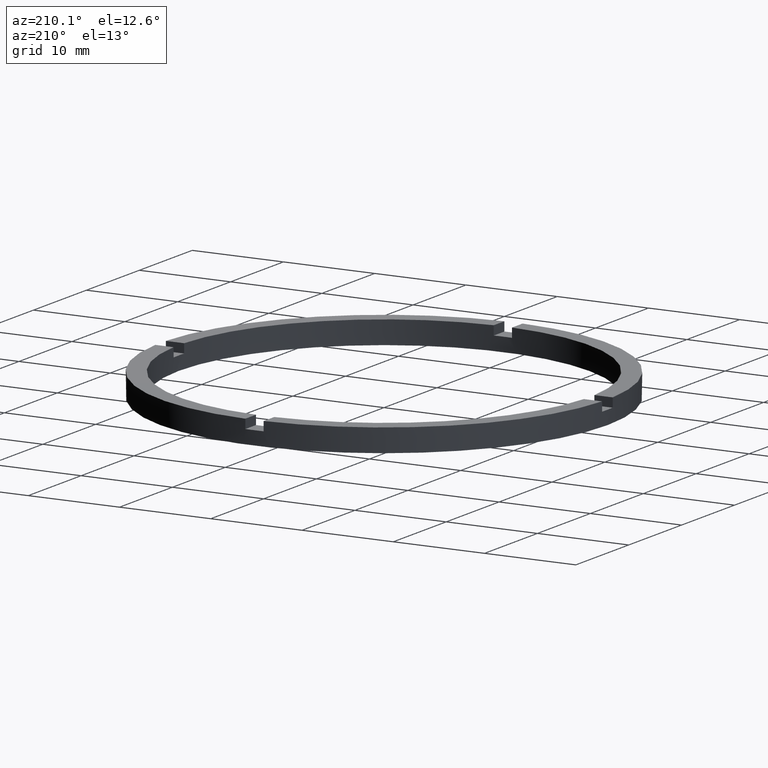
[diagram: clean part render]
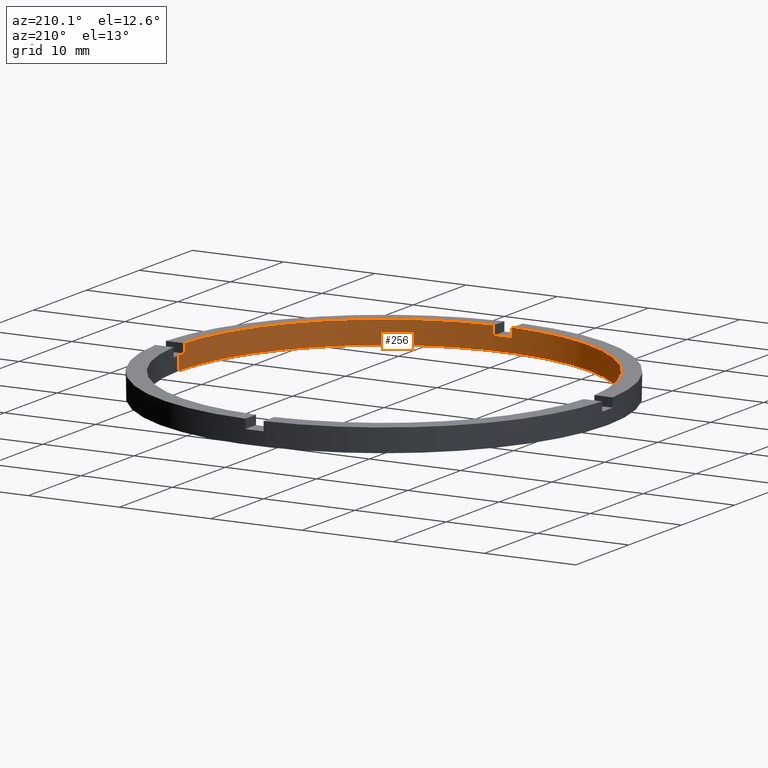
[diagram: same view with one face highlighted and labeled with its STEP entity id]
A machine part, auxiliary view. The second image highlights one B-rep face of the part: STEP entity #256.
In plain terms, the highlighted cylindrical surface (partial cylindrical patch) has radius 22.5 mm, axis along (-0, -0, -1).
Its self-contained STEP definition (entity closure, byte-faithful):
#6 = DIRECTION ( 'NONE',  ( 0.000000000000000000, 0.000000000000000000, 1.000000000000000000 ) ) ;
#8 = DIRECTION ( 'NONE',  ( 0.000000000000000000, 0.000000000000000000, 1.000000000000000000 ) ) ;
#9 = ORIENTED_EDGE ( 'NONE', *, *, #593, .F. ) ;
#35 = DIRECTION ( 'NONE',  ( 0.000000000000000000, 0.000000000000000000, 1.000000000000000000 ) ) ;
#36 = CARTESIAN_POINT ( 'NONE',  ( 0.9999999999998389066, -22.47776679298903346, 2.500000000000000000 ) ) ;
#54 = CARTESIAN_POINT ( 'NONE',  ( 22.47776679298901925, -1.000000000000157874, 1.500000000000000000 ) ) ;
#55 = DIRECTION ( 'NONE',  ( 1.000000000000000000, 0.000000000000000000, 0.000000000000000000 ) ) ;
#60 = AXIS2_PLACEMENT_3D ( 'NONE', #585, #8, #55 ) ;
#62 = CARTESIAN_POINT ( 'NONE',  ( 22.50000000000000355, 2.755455298081545172E-15, 2.500000000000000000 ) ) ;
#76 = EDGE_CURVE ( 'NONE', #611, #520, #659, .T. ) ;
#84 = ORIENTED_EDGE ( 'NONE', *, *, #763, .F. ) ;
#85 = AXIS2_PLACEMENT_3D ( 'NONE', #631, #576, #776 ) ;
#96 = CARTESIAN_POINT ( 'NONE',  ( 0.000000000000000000, 0.000000000000000000, 2.500000000000000000 ) ) ;
#100 = AXIS2_PLACEMENT_3D ( 'NONE', #96, #730, #245 ) ;
#103 = DIRECTION ( 'NONE',  ( -0.000000000000000000, -0.000000000000000000, -1.000000000000000000 ) ) ;
#107 = ORIENTED_EDGE ( 'NONE', *, *, #76, .T. ) ;
#117 = VERTEX_POINT ( 'NONE', #320 ) ;
#123 = CARTESIAN_POINT ( 'NONE',  ( 22.50000000000000355, 2.755455298081545172E-15, 1.500000000000000000 ) ) ;
#129 = DIRECTION ( 'NONE',  ( -0.000000000000000000, -0.000000000000000000, -1.000000000000000000 ) ) ;
#143 = VECTOR ( 'NONE', #6, 1000.000000000000000 ) ;
#152 = DIRECTION ( 'NONE',  ( 0.000000000000000000, 0.000000000000000000, 1.000000000000000000 ) ) ;
#156 = CYLINDRICAL_SURFACE ( 'NONE', #100, 22.50000000000000355 ) ;
#160 = DIRECTION ( 'NONE',  ( 1.000000000000000000, 0.000000000000000000, 0.000000000000000000 ) ) ;
#168 = LINE ( 'NONE', #312, #686 ) ;
#176 = LINE ( 'NONE', #754, #433 ) ;
#203 = ORIENTED_EDGE ( 'NONE', *, *, #278, .F. ) ;
#207 = VERTEX_POINT ( 'NONE', #36 ) ;
#211 = CIRCLE ( 'NONE', #344, 22.50000000000000355 ) ;
#226 = CARTESIAN_POINT ( 'NONE',  ( -22.47776679298902636, -1.000000000000025313, 1.500000000000000000 ) ) ;
#234 = VERTEX_POINT ( 'NONE', #676 ) ;
#245 = DIRECTION ( 'NONE',  ( -1.000000000000000000, 0.000000000000000000, 0.000000000000000000 ) ) ;
#250 = DIRECTION ( 'NONE',  ( 0.000000000000000000, 0.000000000000000000, 1.000000000000000000 ) ) ;
#255 = EDGE_LOOP ( 'NONE', ( #260, #107, #280, #9, #468, #84, #724, #203, #537, #726, #522, #472 ) ) ;
#256 = ADVANCED_FACE ( 'NONE', ( #421 ), #156, .F. ) ;
#257 = DIRECTION ( 'NONE',  ( -0.000000000000000000, -0.000000000000000000, -1.000000000000000000 ) ) ;
#260 = ORIENTED_EDGE ( 'NONE', *, *, #322, .T. ) ;
#265 = CARTESIAN_POINT ( 'NONE',  ( 22.47776679298901925, -1.000000000000157874, 2.500000000000000000 ) ) ;
#267 = EDGE_CURVE ( 'NONE', #362, #520, #682, .T. ) ;
#273 = VERTEX_POINT ( 'NONE', #298 ) ;
#278 = EDGE_CURVE ( 'NONE', #714, #117, #646, .T. ) ;
#280 = ORIENTED_EDGE ( 'NONE', *, *, #267, .F. ) ;
#292 = AXIS2_PLACEMENT_3D ( 'NONE', #394, #770, #721 ) ;
#298 = CARTESIAN_POINT ( 'NONE',  ( -22.50000000000000355, 0.000000000000000000, 1.500000000000000000 ) ) ;
#300 = EDGE_CURVE ( 'NONE', #207, #518, #660, .T. ) ;
#312 = CARTESIAN_POINT ( 'NONE',  ( -22.50000000000000355, 0.000000000000000000, 2.500000000000000000 ) ) ;
#320 = CARTESIAN_POINT ( 'NONE',  ( -1.000000000000161204, -22.47776679298901925, 2.500000000000000000 ) ) ;
#322 = EDGE_CURVE ( 'NONE', #458, #611, #390, .T. ) ;
#323 = DIRECTION ( 'NONE',  ( 1.000000000000000000, 0.000000000000000000, 0.000000000000000000 ) ) ;
#334 = DIRECTION ( 'NONE',  ( 0.000000000000000000, 0.000000000000000000, 1.000000000000000000 ) ) ;
#344 = AXIS2_PLACEMENT_3D ( 'NONE', #626, #152, #323 ) ;
#354 = EDGE_CURVE ( 'NONE', #273, #368, #668, .T. ) ;
#362 = VERTEX_POINT ( 'NONE', #620 ) ;
#364 = CARTESIAN_POINT ( 'NONE',  ( 22.47776679298901925, -1.000000000000157874, 2.500000000000000000 ) ) ;
#368 = VERTEX_POINT ( 'NONE', #226 ) ;
#385 = VECTOR ( 'NONE', #129, 1000.000000000000000 ) ;
#390 = CIRCLE ( 'NONE', #60, 22.50000000000000355 ) ;
#394 = CARTESIAN_POINT ( 'NONE',  ( 0.000000000000000000, 0.000000000000000000, 1.500000000000000000 ) ) ;
#405 = LINE ( 'NONE', #265, #477 ) ;
#411 = EDGE_CURVE ( 'NONE', #714, #518, #687, .T. ) ;
#421 = FACE_OUTER_BOUND ( 'NONE', #255, .T. ) ;
#433 = VECTOR ( 'NONE', #257, 1000.000000000000000 ) ;
#458 = VERTEX_POINT ( 'NONE', #54 ) ;
#468 = ORIENTED_EDGE ( 'NONE', *, *, #354, .T. ) ;
#472 = ORIENTED_EDGE ( 'NONE', *, *, #636, .F. ) ;
#477 = VECTOR ( 'NONE', #250, 1000.000000000000000 ) ;
#499 = DIRECTION ( 'NONE',  ( 1.000000000000000000, 0.000000000000000000, 0.000000000000000000 ) ) ;
#500 = DIRECTION ( 'NONE',  ( -0.000000000000000000, -0.000000000000000000, -1.000000000000000000 ) ) ;
#506 = CARTESIAN_POINT ( 'NONE',  ( -1.000000000000161204, -22.47776679298901925, 1.500000000000000000 ) ) ;
#518 = VERTEX_POINT ( 'NONE', #580 ) ;
#520 = VERTEX_POINT ( 'NONE', #539 ) ;
#522 = ORIENTED_EDGE ( 'NONE', *, *, #571, .T. ) ;
#537 = ORIENTED_EDGE ( 'NONE', *, *, #411, .T. ) ;
#538 = AXIS2_PLACEMENT_3D ( 'NONE', #582, #35, #160 ) ;
#539 = CARTESIAN_POINT ( 'NONE',  ( 22.50000000000000355, 2.755455298081545172E-15, 0.000000000000000000 ) ) ;
#549 = CARTESIAN_POINT ( 'NONE',  ( 0.000000000000000000, 0.000000000000000000, 0.000000000000000000 ) ) ;
#571 = EDGE_CURVE ( 'NONE', #207, #766, #689, .T. ) ;
#576 = DIRECTION ( 'NONE',  ( 0.000000000000000000, 0.000000000000000000, 1.000000000000000000 ) ) ;
#580 = CARTESIAN_POINT ( 'NONE',  ( 0.9999999999998389066, -22.47776679298903346, 1.500000000000000000 ) ) ;
#582 = CARTESIAN_POINT ( 'NONE',  ( 0.000000000000000000, 0.000000000000000000, 1.500000000000000000 ) ) ;
#585 = CARTESIAN_POINT ( 'NONE',  ( 0.000000000000000000, 0.000000000000000000, 1.500000000000000000 ) ) ;
#593 = EDGE_CURVE ( 'NONE', #273, #362, #168, .T. ) ;
#611 = VERTEX_POINT ( 'NONE', #123 ) ;
#620 = CARTESIAN_POINT ( 'NONE',  ( -22.50000000000000355, 0.000000000000000000, 0.000000000000000000 ) ) ;
#626 = CARTESIAN_POINT ( 'NONE',  ( 0.000000000000000000, 0.000000000000000000, 2.500000000000000000 ) ) ;
#631 = CARTESIAN_POINT ( 'NONE',  ( 0.000000000000000000, 0.000000000000000000, 2.500000000000000000 ) ) ;
#633 = AXIS2_PLACEMENT_3D ( 'NONE', #549, #334, #499 ) ;
#636 = EDGE_CURVE ( 'NONE', #458, #766, #405, .T. ) ;
#646 = LINE ( 'NONE', #740, #143 ) ;
#658 = VECTOR ( 'NONE', #103, 1000.000000000000000 ) ;
#659 = LINE ( 'NONE', #62, #385 ) ;
#660 = LINE ( 'NONE', #663, #658 ) ;
#663 = CARTESIAN_POINT ( 'NONE',  ( 0.9999999999998389066, -22.47776679298903346, 2.500000000000000000 ) ) ;
#668 = CIRCLE ( 'NONE', #538, 22.50000000000000355 ) ;
#676 = CARTESIAN_POINT ( 'NONE',  ( -22.47776679298902636, -1.000000000000025313, 2.500000000000000000 ) ) ;
#682 = CIRCLE ( 'NONE', #633, 22.50000000000000355 ) ;
#686 = VECTOR ( 'NONE', #500, 1000.000000000000000 ) ;
#687 = CIRCLE ( 'NONE', #292, 22.50000000000000355 ) ;
#689 = CIRCLE ( 'NONE', #85, 22.50000000000000355 ) ;
#714 = VERTEX_POINT ( 'NONE', #506 ) ;
#721 = DIRECTION ( 'NONE',  ( 1.000000000000000000, 0.000000000000000000, 0.000000000000000000 ) ) ;
#724 = ORIENTED_EDGE ( 'NONE', *, *, #736, .T. ) ;
#726 = ORIENTED_EDGE ( 'NONE', *, *, #300, .F. ) ;
#730 = DIRECTION ( 'NONE',  ( -0.000000000000000000, -0.000000000000000000, -1.000000000000000000 ) ) ;
#736 = EDGE_CURVE ( 'NONE', #234, #117, #211, .T. ) ;
#740 = CARTESIAN_POINT ( 'NONE',  ( -1.000000000000161204, -22.47776679298901925, 2.500000000000000000 ) ) ;
#754 = CARTESIAN_POINT ( 'NONE',  ( -22.47776679298902636, -1.000000000000025313, 2.500000000000000000 ) ) ;
#763 = EDGE_CURVE ( 'NONE', #234, #368, #176, .T. ) ;
#766 = VERTEX_POINT ( 'NONE', #364 ) ;
#770 = DIRECTION ( 'NONE',  ( -0.000000000000000000, 0.000000000000000000, 1.000000000000000000 ) ) ;
#776 = DIRECTION ( 'NONE',  ( 1.000000000000000000, 0.000000000000000000, 0.000000000000000000 ) ) ;